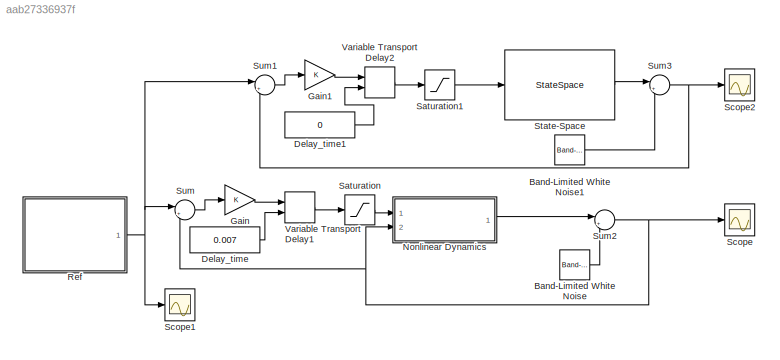
MODEL slx_aab27336937f
KIND model
CONFIG AbsTol = auto
CONFIG EnableMultiTasking = off
CONFIG FixedStep = 0.001
CONFIG MaxStep = auto
CONFIG MinStep = auto
CONFIG RelTol = 1e-3
CONFIG SampleTimeConstraint = Unconstrained
CONFIG SolverName = FixedStepAuto
CONFIG StartTime = 0.0
CONFIG StopTime = 1.5
BLOCK [Reference] Band-Limited White Noise  REF=simulink/Sources/Band-Limited
White Noise
  Ports = [0, 1]
  SourceBlock = simulink/Sources/Band-Limited\nWhite Noise
  SourceProductBaseCode = SL
  SourceType = Band-Limited White Noise.
BLOCK [Reference] Band-Limited White Noise1  REF=simulink/Sources/Band-Limited
White Noise
  Ports = [0, 1]
  SourceBlock = simulink/Sources/Band-Limited\nWhite Noise
  SourceProductBaseCode = SL
  SourceType = Band-Limited White Noise.
BLOCK [Constant] Delay_time
  Value = 0.007
BLOCK [Constant] Delay_time1
  Value = 0
BLOCK [Gain] Gain
  Gain = K
  Multiplication = Matrix(K*u)
BLOCK [Gain] Gain1
  Gain = K
  Multiplication = Matrix(K*u)
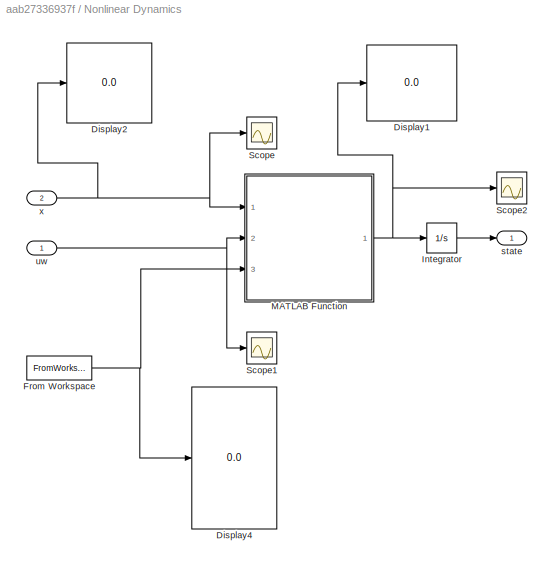
BLOCK [SubSystem] Nonlinear Dynamics
  Ports = [2, 1]
  RequestExecContextInheritance = off
BLOCK [Display] Nonlinear Dynamics/Display1
  Decimation = 1
  Ports = [1]
BLOCK [Display] Nonlinear Dynamics/Display2
  Decimation = 1
  Ports = [1]
BLOCK [Display] Nonlinear Dynamics/Display4
  Decimation = 1
  Ports = [1]
BLOCK [FromWorkspace] Nonlinear Dynamics/From Workspace
  VariableName = param
BLOCK [Integrator] Nonlinear Dynamics/Integrator
  InitialCondition = x0
  Ports = [1, 1]
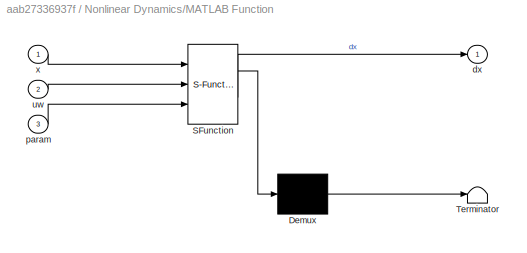
BLOCK [SubSystem] Nonlinear Dynamics/MATLAB Function
  ErrorFcn = Stateflow.Translate.translate
  PermitHierarchicalResolution = ExplicitOnly
  Ports = [3, 1]
  RequestExecContextInheritance = off
  SFBlockType = MATLAB Function
  TreatAsAtomicUnit = on
BLOCK [Demux] Nonlinear Dynamics/MATLAB Function/ Demux 
  Outputs = 1
  Ports = [1, 1]
BLOCK [S-Function] Nonlinear Dynamics/MATLAB Function/ SFunction 
  EnableBusSupport = on
  FunctionName = sf_sfun
  PortCounts = [3 2]
  Ports = [3, 2]
  SFcnIsStateOwnerBlock = off
  SFunctionDeploymentMode = off
  Tag = Stateflow S-Function 2
BLOCK [Terminator] Nonlinear Dynamics/MATLAB Function/ Terminator 
BLOCK [Outport] Nonlinear Dynamics/MATLAB Function/dx
  VectorParamsAs1DForOutWhenUnconnected = off
BLOCK [Inport] Nonlinear Dynamics/MATLAB Function/param
  Port = 3
BLOCK [Inport] Nonlinear Dynamics/MATLAB Function/uw
  Port = 2
BLOCK [Inport] Nonlinear Dynamics/MATLAB Function/x
BLOCK [Scope] Nonlinear Dynamics/Scope
  Floating = off
  NumInputPorts = 1
  Ports = [1]
  ScopeSpecificationString = Simulink.scopes.TimeScopeBlockCfg('CurrentConfiguration', extmgr.ConfigurationSet(extmgr.Configuration('Core','General UI',true),extmgr.Configuration('Core','Source UI',true),extmgr.Configuration('Sources','WiredSimulink',true,'DataLoggingVariableName','states','DataLogging',true,'DataLoggingSaveFormat','Array'),extmgr.Configuration('Visuals','Time Domain',true,'SerializedDisplays',{struct('MinYLi...<+1808ch>
BLOCK [Scope] Nonlinear Dynamics/Scope1
  Floating = off
  NumInputPorts = 1
  Ports = [1]
  ScopeSpecificationString = Simulink.scopes.TimeScopeBlockCfg('CurrentConfiguration', extmgr.ConfigurationSet(extmgr.Configuration('Core','General UI',true),extmgr.Configuration('Core','Source UI',true),extmgr.Configuration('Sources','WiredSimulink',true,'DataLoggingVariableName','command_torque','DataLogging',true,'DataLoggingSaveFormat','Array'),extmgr.Configuration('Visuals','Time Domain',true,'SerializedDisplays',{struct...<+1749ch>
BLOCK [Scope] Nonlinear Dynamics/Scope2
  Floating = off
  NumInputPorts = 1
  Ports = [1]
  ScopeSpecificationString = Simulink.scopes.TimeScopeBlockCfg('CurrentConfiguration', extmgr.ConfigurationSet(extmgr.Configuration('Core','General UI',true),extmgr.Configuration('Core','Source UI',true),extmgr.Configuration('Sources','WiredSimulink',true,'DataLoggingVariableName','ScopeData2'),extmgr.Configuration('Visuals','Time Domain',true,'SerializedDisplays',{struct('MinYLimReal','-298.62174','MaxYLimReal','181.46182','...<+1831ch>
BLOCK [Outport] Nonlinear Dynamics/state
  VectorParamsAs1DForOutWhenUnconnected = off
BLOCK [Inport] Nonlinear Dynamics/uw
BLOCK [Inport] Nonlinear Dynamics/x
  Port = 2
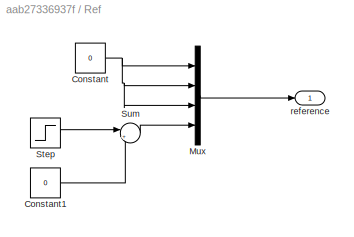
BLOCK [SubSystem] Ref
  Ports = [0, 1]
  RequestExecContextInheritance = off
BLOCK [Constant] Ref/Constant
  Value = 0
BLOCK [Constant] Ref/Constant1
  Value = 0
BLOCK [Mux] Ref/Mux
  DisplayOption = bar
  Ports = [4, 1]
BLOCK [Step] Ref/Step
  After = 4
  SampleTime = 0
  Time = 0.278
BLOCK [Sum] Ref/Sum
  Inputs = |++
  Ports = [2, 1]
BLOCK [Outport] Ref/reference
  VectorParamsAs1DForOutWhenUnconnected = off
BLOCK [Saturate] Saturation
  LowerLimit = -5
  UpperLimit = 5
BLOCK [Saturate] Saturation1
  LowerLimit = -5
  UpperLimit = 5
BLOCK [Scope] Scope
  Floating = off
  NumInputPorts = 1
  Ports = [1]
  ScopeSpecificationString = Simulink.scopes.TimeScopeBlockCfg('CurrentConfiguration', extmgr.ConfigurationSet(extmgr.Configuration('Core','General UI',true),extmgr.Configuration('Core','Source UI',true),extmgr.Configuration('Sources','WiredSimulink',true,'DataLogging',true,'DataLoggingVariableName','step_1_states'),extmgr.Configuration('Visuals','Time Domain',true,'SerializedDisplays',{struct('MinYLimReal','-7.47982','MaxYLi...<+1462ch>
BLOCK [Scope] Scope1
  Floating = off
  NumInputPorts = 1
  Ports = [1]
  ScopeSpecificationString = Simulink.scopes.TimeScopeBlockCfg('CurrentConfiguration', extmgr.ConfigurationSet(extmgr.Configuration('Core','General UI',true),extmgr.Configuration('Core','Source UI',true),extmgr.Configuration('Sources','WiredSimulink',true,'DataLoggingVariableName','ScopeData1'),extmgr.Configuration('Visuals','Time Domain',true,'SerializedDisplays',{struct('MinYLimReal','-0.5','MaxYLimReal','4.5','YLabelReal',...<+1364ch>
BLOCK [Scope] Scope2
  Floating = off
  NumInputPorts = 1
  Ports = [1]
  ScopeSpecificationString = Simulink.scopes.TimeScopeBlockCfg('CurrentConfiguration', extmgr.ConfigurationSet(extmgr.Configuration('Core','General UI',true),extmgr.Configuration('Core','Source UI',true),extmgr.Configuration('Sources','WiredSimulink',true,'DataLoggingVariableName','ScopeData1','DataLogging',true,'DataLoggingSaveFormat','Array'),extmgr.Configuration('Visuals','Time Domain',true,'SerializedDisplays',{struct('Mi...<+1850ch>
BLOCK [StateSpace] State-Space
  A = AA
  B = BB
  C = C
  D = D
  InitialCondition = 0
  Ports = [1, 1]
BLOCK [Sum] Sum
  Inputs = |+-
  Ports = [2, 1]
BLOCK [Sum] Sum1
  Inputs = |+-
  Ports = [2, 1]
BLOCK [Sum] Sum2
  Inputs = |++
  Ports = [2, 1]
BLOCK [Sum] Sum3
  Inputs = |++
  Ports = [2, 1]
BLOCK [VariableTransportDelay] Variable Transport Delay1
  MaximumDelay = 10
  Ports = [2, 1]
  ZeroDelay = on
BLOCK [VariableTransportDelay] Variable Transport Delay2
  MaximumDelay = 10
  Ports = [2, 1]
  ZeroDelay = on
LINE Band-Limited White Noise1:1 -> Sum3:2
LINE Band-Limited White Noise:1 -> Sum2:2
LINE Delay_time1:1 -> Variable Transport Delay2:2
LINE Delay_time:1 -> Variable Transport Delay1:2
LINE Gain1:1 -> Variable Transport Delay2:1
LINE Gain:1 -> Variable Transport Delay1:1
NET Nonlinear Dynamics/From Workspace:1 -> Nonlinear Dynamics/Display4:1, Nonlinear Dynamics/MATLAB Function:3
LINE Nonlinear Dynamics/Integrator:1 -> Nonlinear Dynamics/state:1
NET Nonlinear Dynamics/MATLAB Function:1 -> Nonlinear Dynamics/Display1:1, Nonlinear Dynamics/Integrator:1, Nonlinear Dynamics/Scope2:1
NET Nonlinear Dynamics/uw:1 -> Nonlinear Dynamics/MATLAB Function:2, Nonlinear Dynamics/Scope1:1
NET Nonlinear Dynamics/x:1 -> Nonlinear Dynamics/Display2:1, Nonlinear Dynamics/MATLAB Function:1, Nonlinear Dynamics/Scope:1
LINE Nonlinear Dynamics:1 -> Sum2:1
LINE Ref/Constant1:1 -> Ref/Sum:2
NET Ref/Constant:1 -> Ref/Mux:1, Ref/Mux:2, Ref/Mux:3
LINE Ref/Mux:1 -> Ref/reference:1
LINE Ref/Step:1 -> Ref/Sum:1
LINE Ref/Sum:1 -> Ref/Mux:4
NET Ref:1 -> Scope1:1, Sum1:1, Sum:1
LINE Saturation1:1 -> State-Space:1
LINE Saturation:1 -> Nonlinear Dynamics:1
LINE State-Space:1 -> Sum3:1
LINE Sum1:1 -> Gain1:1
NET Sum2:1 -> Nonlinear Dynamics:2, Scope:1, Sum:2
NET Sum3:1 -> Scope2:1, Sum1:2
LINE Sum:1 -> Gain:1
LINE Variable Transport Delay1:1 -> Saturation:1
LINE Variable Transport Delay2:1 -> Saturation1:1
note: NET lines group one-source signal fan-out (src -> all destinations, sorted); 1:1 wires keep LINE
CHART Nonlinear Dynamics/MATLAB Function states=1 transitions=1
  STATE_LABEL 'eML_blk_kernel()'
  STATE_LABEL 'SCRIPT:\nfunction dx = PIPTBDynamics(x,uw,param)\nmK = param(1);\nIK = param(2);\nrK = param(3);\nmA = param(4);\nIA = param(5);\nlAC = param(6);\nmL = param(7);\ng =9.8;\ntheta = x(1,:);  \nphi = x(2,:);\ndtheta = x(3,:);\ndphi = x(4,:);\nq = [theta;phi];\ndq = [dtheta;dphi];\n\n[ddtheta,ddphi] = autoGen_PIPTBDynamics(q,dq,uw,mK,IK,rK,mA,IA,lAC,mL,g);\n\ndx = [dtheta;dphi;ddtheta;ddphi];\n\nend\n'
CHART  states=0 transitions=0
